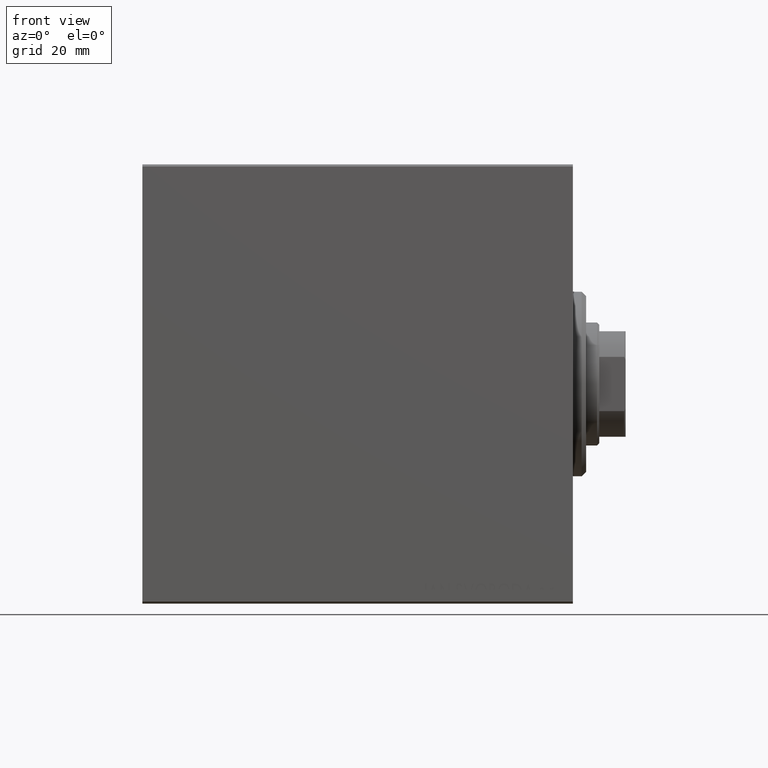
[diagram: clean part render]
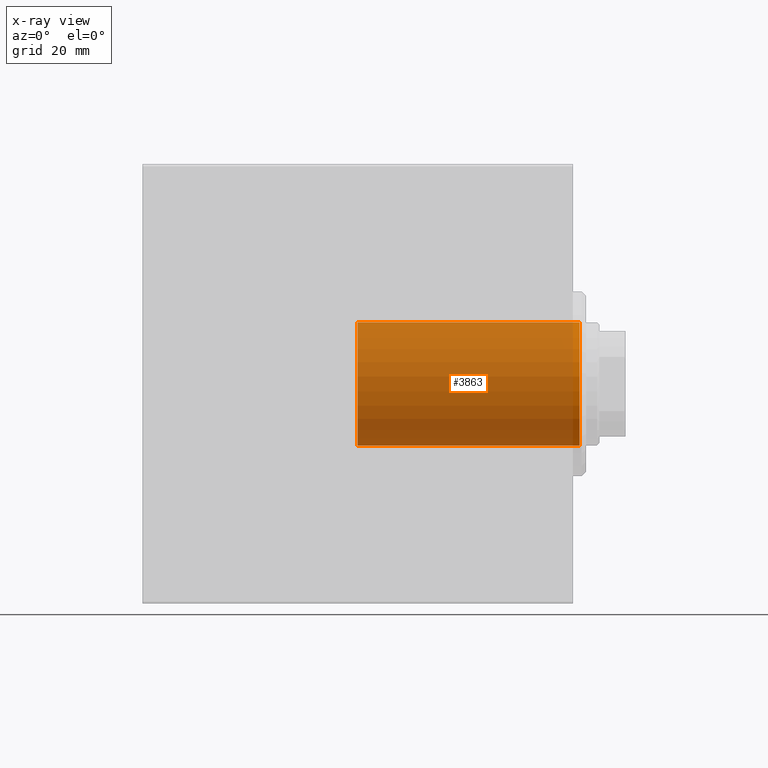
[diagram: x-ray — body ghosted, one internal face saturated and labeled with its STEP entity id]
A machine part, front view, then the same camera in x-ray: the body is ghosted and one INTERNAL B-rep face — a face not visible from any outside direction — is saturated and labeled: STEP entity #3863.
In plain terms, the highlighted cylindrical surface (partial cylindrical patch) has radius 14 mm, axis along (1, 0, 0).
Its self-contained STEP definition (entity closure, byte-faithful):
#1582 = VERTEX_POINT ( 'NONE', #27023 ) ;
#2539 = AXIS2_PLACEMENT_3D ( 'NONE', #35570, #4401, #18300 ) ;
#2880 = VERTEX_POINT ( 'NONE', #36283 ) ;
#3178 = CARTESIAN_POINT ( 'NONE',  ( -48.99999999999999289, 0.000000000000000000, -14.00000000000000000 ) ) ;
#3610 = EDGE_LOOP ( 'NONE', ( #19305, #37706, #39655, #4398 ) ) ;
#3863 = ADVANCED_FACE ( 'NONE', ( #25104 ), #7824, .F. ) ;
#3979 = EDGE_CURVE ( 'NONE', #1582, #2880, #37424, .T. ) ;
#4398 = ORIENTED_EDGE ( 'NONE', *, *, #20948, .F. ) ;
#4401 = DIRECTION ( 'NONE',  ( 1.000000000000000000, -0.000000000000000000, -0.000000000000000000 ) ) ;
#5556 = CIRCLE ( 'NONE', #19367, 14.00000000000000000 ) ;
#6581 = VERTEX_POINT ( 'NONE', #18648 ) ;
#7824 = CYLINDRICAL_SURFACE ( 'NONE', #2539, 14.00000000000000000 ) ;
#10876 = DIRECTION ( 'NONE',  ( 0.000000000000000000, 0.000000000000000000, -1.000000000000000000 ) ) ;
#15543 = CARTESIAN_POINT ( 'NONE',  ( -48.99999999999999289, 0.000000000000000000, 0.000000000000000000 ) ) ;
#17481 = CARTESIAN_POINT ( 'NONE',  ( 1.500000000000001332, 0.000000000000000000, 0.000000000000000000 ) ) ;
#18300 = DIRECTION ( 'NONE',  ( 0.000000000000000000, 0.000000000000000000, -1.000000000000000000 ) ) ;
#18648 = CARTESIAN_POINT ( 'NONE',  ( 1.500000000000001332, 0.000000000000000000, -14.00000000000000000 ) ) ;
#19305 = ORIENTED_EDGE ( 'NONE', *, *, #3979, .F. ) ;
#19367 = AXIS2_PLACEMENT_3D ( 'NONE', #17481, #37727, #10876 ) ;
#20500 = DIRECTION ( 'NONE',  ( 1.000000000000000000, -0.000000000000000000, -0.000000000000000000 ) ) ;
#20948 = EDGE_CURVE ( 'NONE', #2880, #6581, #45055, .T. ) ;
#21485 = AXIS2_PLACEMENT_3D ( 'NONE', #15543, #25996, #26222 ) ;
#24746 = VECTOR ( 'NONE', #29890, 1000.000000000000000 ) ;
#25104 = FACE_OUTER_BOUND ( 'NONE', #3610, .T. ) ;
#25969 = EDGE_CURVE ( 'NONE', #1582, #28235, #40334, .T. ) ;
#25996 = DIRECTION ( 'NONE',  ( 1.000000000000000000, 0.000000000000000000, 0.000000000000000000 ) ) ;
#26222 = DIRECTION ( 'NONE',  ( 0.000000000000000000, 0.000000000000000000, -1.000000000000000000 ) ) ;
#26610 = CARTESIAN_POINT ( 'NONE',  ( 1.500000000000001332, 1.714505518806294244E-15, 14.00000000000000000 ) ) ;
#27023 = CARTESIAN_POINT ( 'NONE',  ( -48.99999999999999289, 1.714505518806294244E-15, 14.00000000000000000 ) ) ;
#27633 = VECTOR ( 'NONE', #20500, 1000.000000000000000 ) ;
#28235 = VERTEX_POINT ( 'NONE', #26610 ) ;
#29430 = CARTESIAN_POINT ( 'NONE',  ( -48.99999999999999289, 1.714505518806294244E-15, 14.00000000000000000 ) ) ;
#29447 = EDGE_CURVE ( 'NONE', #28235, #6581, #5556, .T. ) ;
#29890 = DIRECTION ( 'NONE',  ( 1.000000000000000000, -0.000000000000000000, -0.000000000000000000 ) ) ;
#35570 = CARTESIAN_POINT ( 'NONE',  ( -48.99999999999999289, 0.000000000000000000, 0.000000000000000000 ) ) ;
#36283 = CARTESIAN_POINT ( 'NONE',  ( -48.99999999999999289, 0.000000000000000000, -14.00000000000000000 ) ) ;
#37424 = CIRCLE ( 'NONE', #21485, 14.00000000000000000 ) ;
#37706 = ORIENTED_EDGE ( 'NONE', *, *, #25969, .T. ) ;
#37727 = DIRECTION ( 'NONE',  ( 1.000000000000000000, 0.000000000000000000, 0.000000000000000000 ) ) ;
#39655 = ORIENTED_EDGE ( 'NONE', *, *, #29447, .T. ) ;
#40334 = LINE ( 'NONE', #29430, #24746 ) ;
#45055 = LINE ( 'NONE', #3178, #27633 ) ;